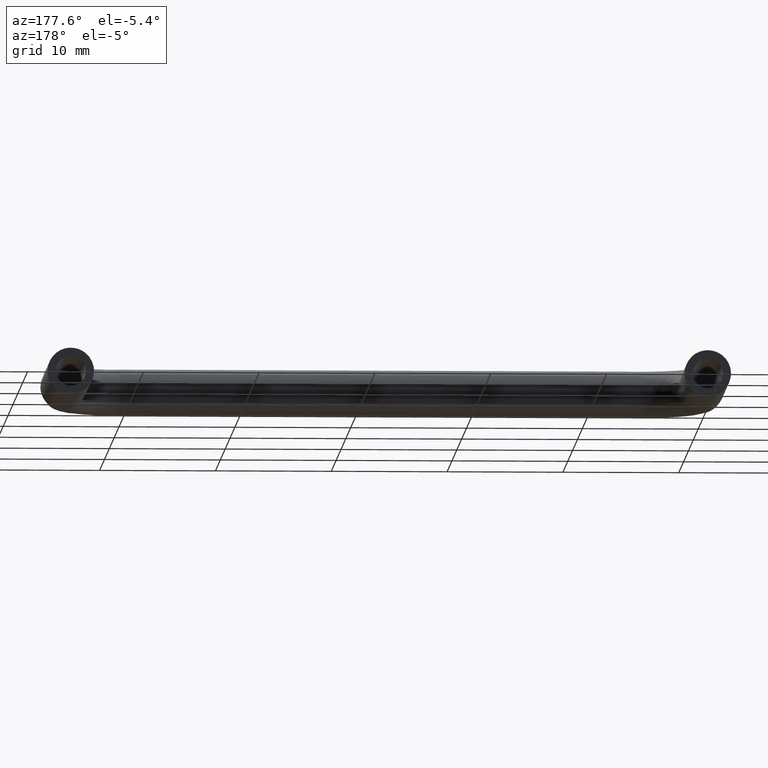
[diagram: clean part render]
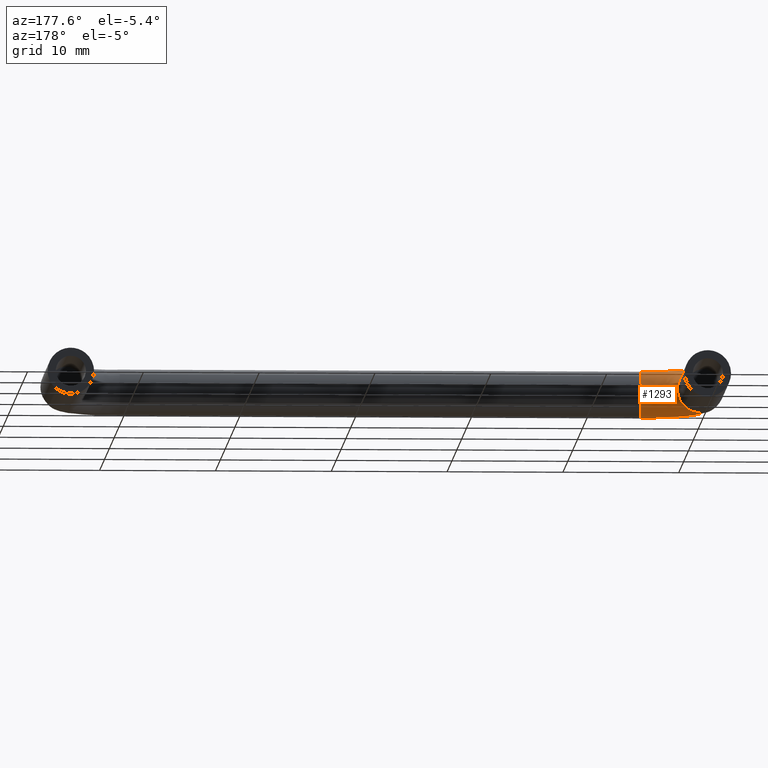
[diagram: same view with one face highlighted and labeled with its STEP entity id]
A machine part, auxiliary view. The second image highlights one B-rep face of the part: STEP entity #1293.
In plain terms, the highlighted face is a freeform B-spline surface patch.
Its self-contained STEP definition (entity closure, byte-faithful):
#693=CARTESIAN_POINT('',(4.999999999513786,-20.139466505334081,-1.995131347528251));
#694=VERTEX_POINT('',#693);
#708=CARTESIAN_POINT('',(5.0,-18.0,0.0));
#709=VERTEX_POINT('',#708);
#710=CARTESIAN_POINT('',(5.0,-18.0,0.0));
#711=CARTESIAN_POINT('',(5.000000000000001,-18.000000000000007,-2.000000000000000));
#712=CARTESIAN_POINT('',(5.0,-20.0,-2.0));
#713=CARTESIAN_POINT('',(5.0,-20.069818233940616,-2.000000000000000));
#714=CARTESIAN_POINT('',(4.999999999513786,-20.139466505334088,-1.995131347528252));
#722=(BOUNDED_CURVE()B_SPLINE_CURVE(2,(#710,#711,#712,#713,#714),.UNSPECIFIED.,.F.,.U.)B_SPLINE_CURVE_WITH_KNOTS((3,2,3),(0.0,0.250000000000000,0.262166313841254),.UNSPECIFIED.)CURVE()GEOMETRIC_REPRESENTATION_ITEM()RATIONAL_B_SPLINE_CURVE((1.0,0.707106781186548,1.0,0.985746276711761,0.972879875590972))REPRESENTATION_ITEM(''));
#723=EDGE_CURVE('',#709,#694,#722,.T.);
#725=CARTESIAN_POINT('',(4.999999999903493,-18.648819582947901,1.474554671894264));
#726=VERTEX_POINT('',#725);
#727=CARTESIAN_POINT('',(4.999999999903493,-18.648819582947898,1.474554671894264));
#728=CARTESIAN_POINT('',(5.0,-18.0,0.880021058732845));
#729=CARTESIAN_POINT('',(5.0,-18.0,0.0));
#737=(BOUNDED_CURVE()B_SPLINE_CURVE(2,(#727,#728,#729),.UNSPECIFIED.,.F.,.U.)B_SPLINE_CURVE_WITH_KNOTS((3,3),(0.868415209469920,1.0),.UNSPECIFIED.)CURVE()GEOMETRIC_REPRESENTATION_ITEM()RATIONAL_B_SPLINE_CURVE((0.853959780790329,0.845838828619004,1.0))REPRESENTATION_ITEM(''));
#738=EDGE_CURVE('',#726,#709,#737,.T.);
#840=CARTESIAN_POINT('',(4.999999999706253,-19.974867919845689,1.999842088402761));
#841=VERTEX_POINT('',#840);
#842=CARTESIAN_POINT('',(4.999999999706253,-19.974867919845682,1.999842088402761));
#843=CARTESIAN_POINT('',(4.999999999819784,-19.211602391093841,1.990250105688350));
#844=CARTESIAN_POINT('',(4.999999999903493,-18.648819582947898,1.474554671894264));
#852=(BOUNDED_CURVE()B_SPLINE_CURVE(2,(#842,#843,#844),.UNSPECIFIED.,.F.,.U.)B_SPLINE_CURVE_WITH_KNOTS((3,3),(0.752215704146445,0.868415209469920),.UNSPECIFIED.)CURVE()GEOMETRIC_REPRESENTATION_ITEM()RATIONAL_B_SPLINE_CURVE((0.994854295487105,0.861131207071908,0.853959780790329))REPRESENTATION_ITEM(''));
#853=EDGE_CURVE('',#841,#726,#852,.T.);
#896=CARTESIAN_POINT('',(0.025132080729347,-15.000000000609379,1.999842088395535));
#897=VERTEX_POINT('',#896);
#898=CARTESIAN_POINT('',(1.401818336246286,-15.000000000184590,1.426501087192053));
#899=VERTEX_POINT('',#898);
#900=CARTESIAN_POINT('',(0.025132080729347,-15.000000000609377,1.999842088395534));
#901=CARTESIAN_POINT('',(0.828657716883103,-15.000000000361442,1.989744155140343));
#902=CARTESIAN_POINT('',(1.401818336246286,-15.000000000184594,1.426501087192053));
#910=(BOUNDED_CURVE()B_SPLINE_CURVE(2,(#900,#901,#902),.UNSPECIFIED.,.F.,.U.)B_SPLINE_CURVE_WITH_KNOTS((3,3),(0.752215704247582,0.873683201746559),.UNSPECIFIED.)CURVE()GEOMETRIC_REPRESENTATION_ITEM()RATIONAL_B_SPLINE_CURVE((0.994854295254327,0.855068769928449,0.853569642255179))REPRESENTATION_ITEM(''));
#911=EDGE_CURVE('',#897,#899,#910,.T.);
#954=CARTESIAN_POINT('',(1.426500994508494,-15.0,-1.401818430705726));
#955=VERTEX_POINT('',#954);
#961=CARTESIAN_POINT('',(-0.139466505929535,-15.000000000684800,-1.995131347486627));
#962=VERTEX_POINT('',#961);
#963=CARTESIAN_POINT('',(1.426500994508494,-15.000000000000007,-1.401818430705726));
#964=CARTESIAN_POINT('',(0.838669764901619,-15.000000000000002,-2.000000000000000));
#965=CARTESIAN_POINT('',(1.836910E-015,-15.0,-2.0));
#966=CARTESIAN_POINT('',(-0.069818234538249,-14.999999999999998,-2.0));
#967=CARTESIAN_POINT('',(-0.139466505929535,-15.000000000684807,-1.995131347486628));
#975=(BOUNDED_CURVE()B_SPLINE_CURVE(2,(#963,#964,#965,#966,#967),.UNSPECIFIED.,.F.,.U.)B_SPLINE_CURVE_WITH_KNOTS((3,2,3),(0.123683221699016,0.250000000000000,0.262166313943911),.UNSPECIFIED.)CURVE()GEOMETRIC_REPRESENTATION_ITEM()RATIONAL_B_SPLINE_CURVE((0.853569641762684,0.852010688853118,1.0,0.985746276591492,0.972879875373844))REPRESENTATION_ITEM(''));
#976=EDGE_CURVE('',#955,#962,#975,.T.);
#1025=CARTESIAN_POINT('',(2.000000000000002,-15.0,0.0));
#1026=VERTEX_POINT('',#1025);
#1027=CARTESIAN_POINT('',(1.401818336246286,-15.000000000184595,1.426501087192053));
#1028=CARTESIAN_POINT('',(2.000000000000002,-14.999999999999996,0.838669920384041));
#1029=CARTESIAN_POINT('',(2.000000000000002,-15.0,0.0));
#1037=(BOUNDED_CURVE()B_SPLINE_CURVE(2,(#1027,#1028,#1029),.UNSPECIFIED.,.F.,.U.)B_SPLINE_CURVE_WITH_KNOTS((3,3),(0.873683201746559,1.0),.UNSPECIFIED.)CURVE()GEOMETRIC_REPRESENTATION_ITEM()RATIONAL_B_SPLINE_CURVE((0.853569642255179,0.852010665477360,1.0))REPRESENTATION_ITEM(''));
#1038=EDGE_CURVE('',#899,#1026,#1037,.T.);
#1040=CARTESIAN_POINT('',(2.000000000000002,-15.0,0.0));
#1041=CARTESIAN_POINT('',(2.000000000000002,-15.000000000000007,-0.818221442633100));
#1042=CARTESIAN_POINT('',(1.426500994508494,-15.000000000000007,-1.401818430705726));
#1050=(BOUNDED_CURVE()B_SPLINE_CURVE(2,(#1040,#1041,#1042),.UNSPECIFIED.,.F.,.U.)B_SPLINE_CURVE_WITH_KNOTS((3,3),(0.0,0.123683221699016),.UNSPECIFIED.)CURVE()GEOMETRIC_REPRESENTATION_ITEM()RATIONAL_B_SPLINE_CURVE((1.0,0.855096092333430,0.853569641762684))REPRESENTATION_ITEM(''));
#1051=EDGE_CURVE('',#1026,#955,#1050,.T.);
#1222=CARTESIAN_POINT('',(0.025132080729347,-15.000000000609372,1.999842088395534));
#1223=CARTESIAN_POINT('',(0.025132080985462,-19.974867919645806,1.999842088407631));
#1224=CARTESIAN_POINT('',(4.999999999706253,-19.974867919845689,1.999842088402761));
#1232=(BOUNDED_CURVE()B_SPLINE_CURVE(2,(#1222,#1223,#1224),.UNSPECIFIED.,.F.,.U.)B_SPLINE_CURVE_WITH_KNOTS((3,3),(-1.747842683413339,-0.278273131068404),.UNSPECIFIED.)CURVE()GEOMETRIC_REPRESENTATION_ITEM()RATIONAL_B_SPLINE_CURVE((0.893710737871779,0.628668022956059,0.884455039412735))REPRESENTATION_ITEM(''));
#1233=EDGE_CURVE('',#897,#841,#1232,.T.);
#1237=CARTESIAN_POINT('',(-0.139466505929535,-15.000000000684798,-1.995131347486627));
#1238=CARTESIAN_POINT('',(-0.139466501781279,-20.139466502178450,-1.995131347680865));
#1239=CARTESIAN_POINT('',(4.999999999513786,-20.139466505334088,-1.995131347528252));
#1247=(BOUNDED_CURVE()B_SPLINE_CURVE(2,(#1237,#1238,#1239),.UNSPECIFIED.,.F.,.U.)B_SPLINE_CURVE_WITH_KNOTS((3,3),(-1.747842683390875,-0.278273131141920),.UNSPECIFIED.)CURVE()GEOMETRIC_REPRESENTATION_ITEM()RATIONAL_B_SPLINE_CURVE((0.873607430494637,0.614526639230734,0.864559931543415))REPRESENTATION_ITEM(''));
#1248=EDGE_CURVE('',#962,#694,#1247,.T.);
#1253=CARTESIAN_POINT('',(0.037045554603120,-14.655915712823623,1.999842088407632));
#1254=CARTESIAN_POINT('',(-0.358603239444119,-20.362619024812144,1.999842088407632));
#1255=CARTESIAN_POINT('',(5.347802079606322,-19.962695289576811,1.999842088407632));
#1256=CARTESIAN_POINT('',(2.032098557395002,-14.794233804979681,1.974710008640926));
#1257=CARTESIAN_POINT('',(1.795496219102971,-18.206905264794990,1.974710008640926));
#1258=CARTESIAN_POINT('',(5.207989475857878,-17.967746464569096,1.974710008640927));
#1259=CARTESIAN_POINT('',(2.007026662221072,-14.792495557072311,-0.025132079766705));
#1260=CARTESIAN_POINT('',(1.768425582010456,-18.233996188865930,-0.025132079766705));
#1261=CARTESIAN_POINT('',(5.209746505340439,-17.992817050537454,-0.025132079766705));
#1262=CARTESIAN_POINT('',(1.981954767047141,-14.790757309164940,-2.024974168174337));
#1263=CARTESIAN_POINT('',(1.741354944917940,-18.261087112936881,-2.024974168174336));
#1264=CARTESIAN_POINT('',(5.211503534822999,-18.017887636505819,-2.024974168174337));
#1265=CARTESIAN_POINT('',(-0.013098235744741,-14.652439217008880,-1.999842088407632));
#1266=CARTESIAN_POINT('',(-0.412744513629150,-20.416800872954038,-1.999842088407632));
#1267=CARTESIAN_POINT('',(5.351316138571444,-20.012836461513547,-1.999842088407632));
#1268=CARTESIAN_POINT('',(-0.070195740453914,-14.648480616456823,-1.999122819776261));
#1269=CARTESIAN_POINT('',(-0.474393855178624,-20.478496415073437,-1.999122819776261));
#1270=CARTESIAN_POINT('',(5.355317511361919,-20.069930984702179,-1.999122819776261));
#1271=CARTESIAN_POINT('',(-0.127158748993161,-14.644531340596181,-1.995131355377936));
#1272=CARTESIAN_POINT('',(-0.535897978467526,-20.540046630104413,-1.995131355377934));
#1273=CARTESIAN_POINT('',(5.359309458708718,-20.126891018744011,-1.995131355377934));
#1281=(BOUNDED_SURFACE()B_SPLINE_SURFACE(2,2,((#1253,#1256,#1259,#1262,#1265,#1268,#1271),(#1254,#1257,#1260,#1263,#1266,#1269,#1272),(#1255,#1258,#1261,#1264,#1267,#1270,#1273)),.UNSPECIFIED.,.F.,.F.,.U.)B_SPLINE_SURFACE_WITH_KNOTS((3,3),(3,2,2,3),(0.0,9.365955426979607),(0.0,3.313708498984763,6.627416997969526,6.759965211520969),.UNSPECIFIED.)GEOMETRIC_REPRESENTATION_ITEM()RATIONAL_B_SPLINE_SURFACE(((0.921487970695580,0.651590392860676,0.921487970695580,0.651590392860676,0.921487970695580,0.910692077877960,0.900759855662087),(0.601353110281207,0.425220862167464,0.601353110281207,0.425220862167464,0.601353110281207,0.594307827075570,0.587826165988871),(0.911307631818076,0.644391806205615,0.911307631818076,0.644391806205615,0.911307631818076,0.900631008975608,0.890808515145976)))REPRESENTATION_ITEM('')SURFACE());
#1282=ORIENTED_EDGE('',*,*,#723,.T.);
#1283=ORIENTED_EDGE('',*,*,#1248,.F.);
#1284=ORIENTED_EDGE('',*,*,#976,.F.);
#1285=ORIENTED_EDGE('',*,*,#1051,.F.);
#1286=ORIENTED_EDGE('',*,*,#1038,.F.);
#1287=ORIENTED_EDGE('',*,*,#911,.F.);
#1288=ORIENTED_EDGE('',*,*,#1233,.T.);
#1289=ORIENTED_EDGE('',*,*,#853,.T.);
#1290=ORIENTED_EDGE('',*,*,#738,.T.);
#1291=EDGE_LOOP('',(#1282,#1283,#1284,#1285,#1286,#1287,#1288,#1289,#1290));
#1292=FACE_OUTER_BOUND('',#1291,.T.);
#1293=ADVANCED_FACE('',(#1292),#1281,.T.);